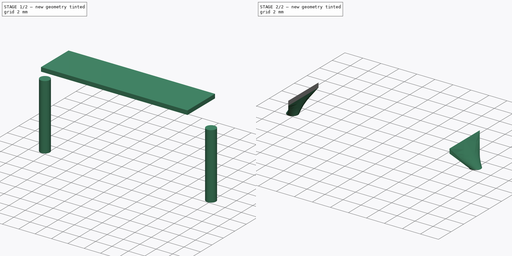
[diagram: build sequence overview — one tinted view per stage of 2, left to right]
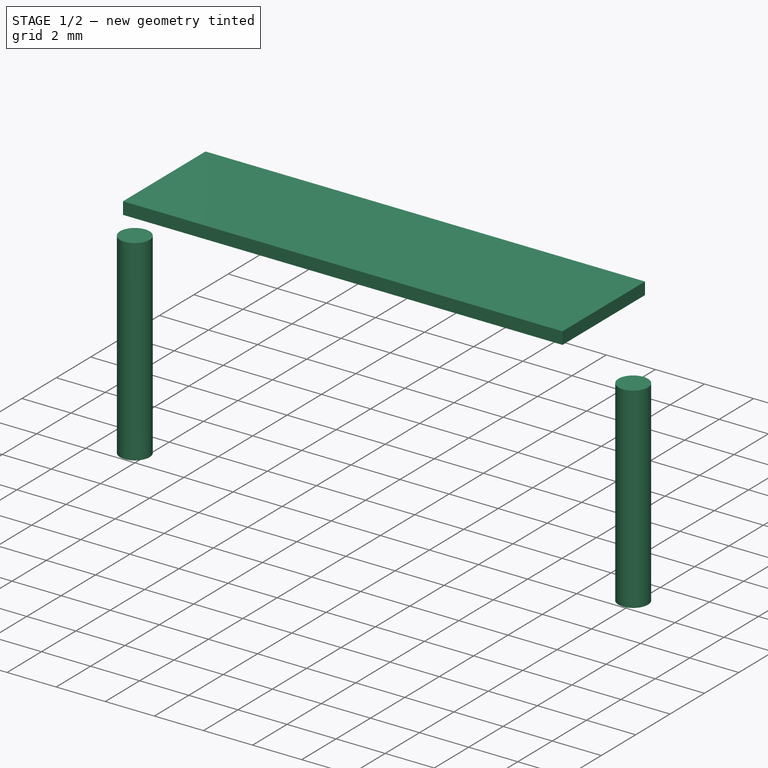
[diagram: stage 1 of 2 — iso view after this stage's code; geometry added in this stage tinted green]
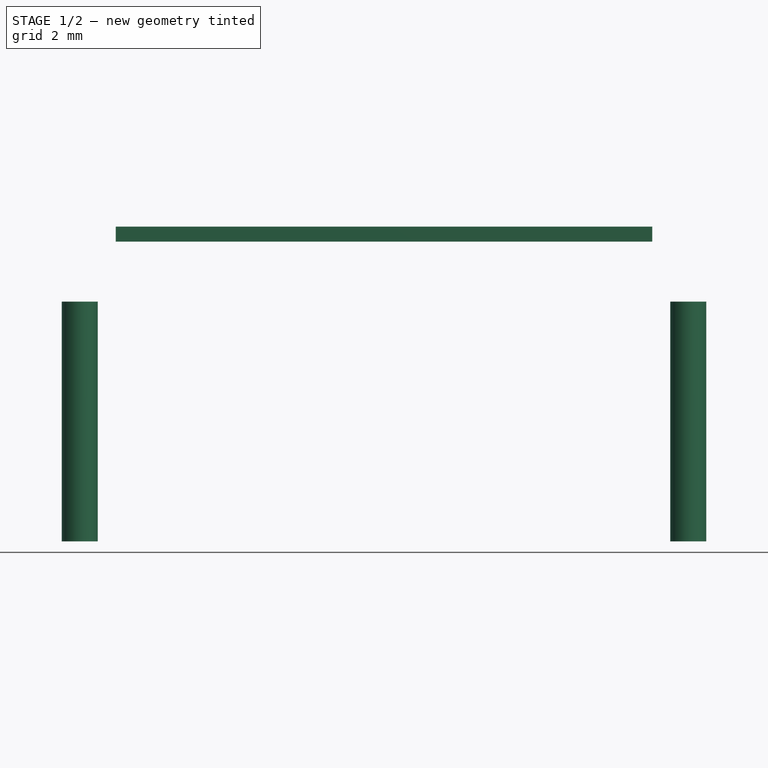
[diagram: stage 1 of 2 — front view after this stage's code; geometry added in this stage tinted green]
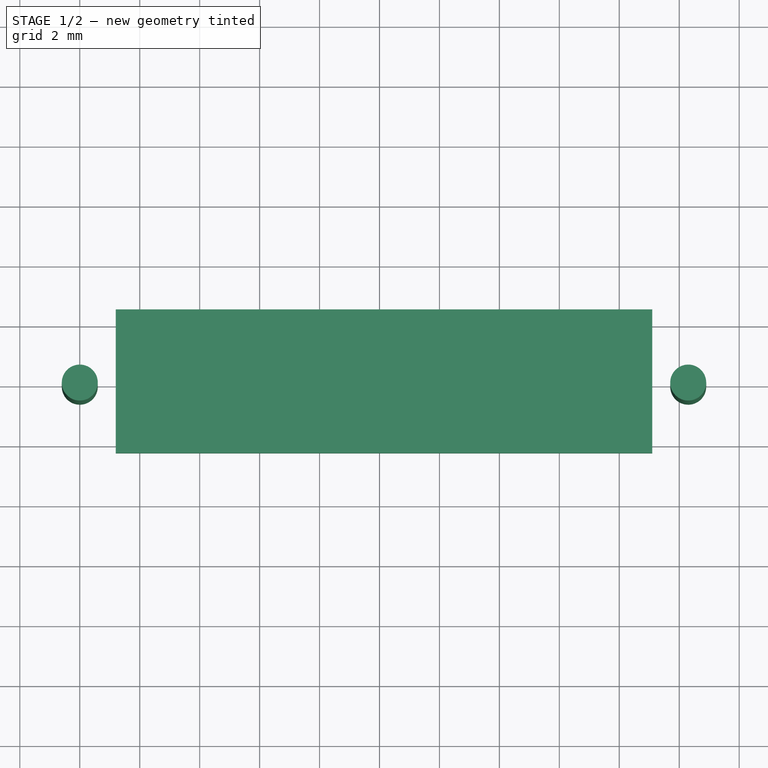
[diagram: stage 1 of 2 — top view after this stage's code; geometry added in this stage tinted green]
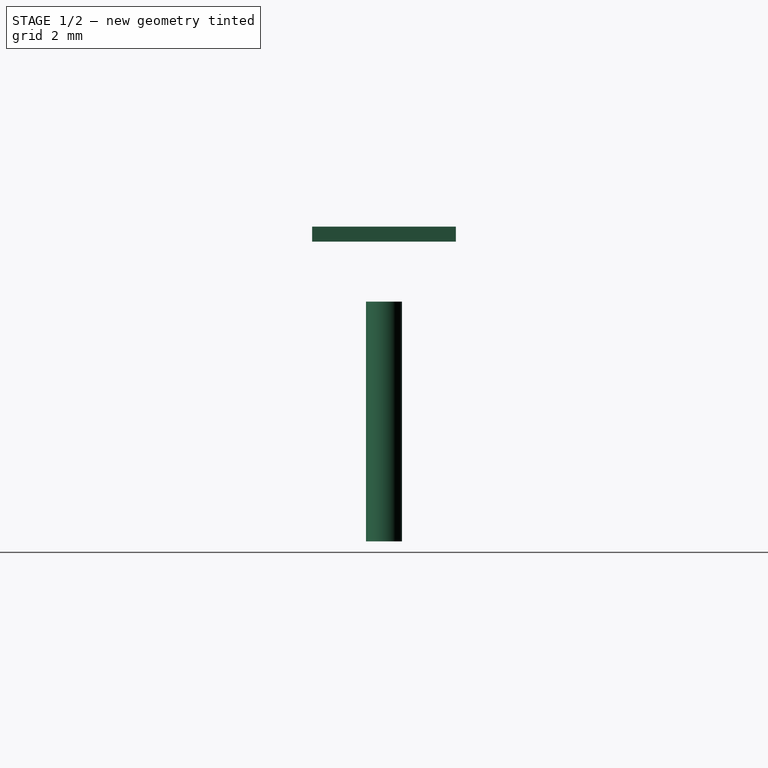
[diagram: stage 1 of 2 — right view after this stage's code; geometry added in this stage tinted green]
FCSTD DOCUMENT  (FreeCAD 0.16R6703 (Git))
Label: Resistor_Bare_Metal_Element_L21.3mm_W4.8mm_P20.30mm
License: All rights reserved
LicenseURL: http://en.wikipedia.org/wiki/All_rights_reserved
objects: Sketcher::SketchObject×6, PartDesign::Pad×2, Part::Loft×2, Spreadsheet::Sheet×1
note: 12 computed .brp shape members not serialized (recipe doc carries the construction recipe); baked Part::Feature solids carry a one-line shape summary decoded from their .brp

FEATURE [Spreadsheet::Sheet] Spreadsheet  label="dimensions"
  cells = A1=L; B1(L)=21.3; A2=d; B2(d)=4.8; C2(dd)=4.8; A3=RM; B3(RM)=20.3; A4=d_wire; B4(d_wire)=1.2
FEATURE [Sketcher::SketchObject] Sketch
  Placement = pos=(0,0,-3) rot=(0,0,1;0rad)
  expr: Constraints[4] = Spreadsheet.d_wire / 2
  expr: Constraints[2] = Spreadsheet.RM
  sketch-geometry (2):
    g0: Circle CenterX=0 CenterY=0 CenterZ=0 NormalX=0 NormalY=0 NormalZ=1 Radius=0.6
    g1: Circle CenterX=20.3 CenterY=0 CenterZ=0 NormalX=0 NormalY=0 NormalZ=1 Radius=0.6
  constraints (5):
    c: Coincident(g0,g-1)
    c: PointOnObject(g1,g-1)
    c: DistanceX(g-1,g1) = 20.3
    c: Equal(g0,g1)
    c: Radius(g0) = 0.6
FEATURE [PartDesign::Pad] Pad
  Length = 8
  Length2 = 100
  Placement = pos=(0,0,-3) rot=(0,0,1;0rad)
  Sketch = -> Sketch
  Type = 0
FEATURE [Sketcher::SketchObject] Sketch001
  Placement = pos=(0,0,7) rot=(0,0,1;0rad)
  expr: Constraints[11] = Spreadsheet.d / 2
  expr: Constraints[2] = Spreadsheet.d
  expr: Constraints[9] = Spreadsheet.d_wire
  expr: Constraints[8] = Spreadsheet.RM - 2 * Spreadsheet.d_wire
  sketch-geometry (4):
    g0: LineSegment StartX=1.2 StartY=2.4 StartZ=0 EndX=19.1 EndY=2.4 EndZ=0
    g1: LineSegment StartX=19.1 StartY=-2.4 StartZ=0 EndX=1.2 EndY=-2.4 EndZ=0
    g2: LineSegment StartX=1.2 StartY=2.4 StartZ=0 EndX=1.2 EndY=-2.4 EndZ=0
    g3: LineSegment StartX=19.1 StartY=-2.4 StartZ=0 EndX=19.1 EndY=2.4 EndZ=0
  constraints (12):
    c: Horizontal(g0)
    c: Horizontal(g1)
    c: DistanceY(g1,g0) = 4.8
    c: Coincident(g2,g0)
    c: Coincident(g2,g1)
    c: Vertical(g2)
    c: Coincident(g3,g0)
    c: Vertical(g3)
    c: DistanceX(g0,g0) = 17.9
    c: DistanceX(g-1,g0) = 1.2
    c: Coincident(g1,g3)
    c: DistanceY(g-1,g0) = 2.4
FEATURE [PartDesign::Pad] Pad001
  Length = 0.5
  Length2 = 100
  Placement = pos=(0,0,7) rot=(0,0,1;0rad)
  Sketch = -> Sketch001
  Type = 0
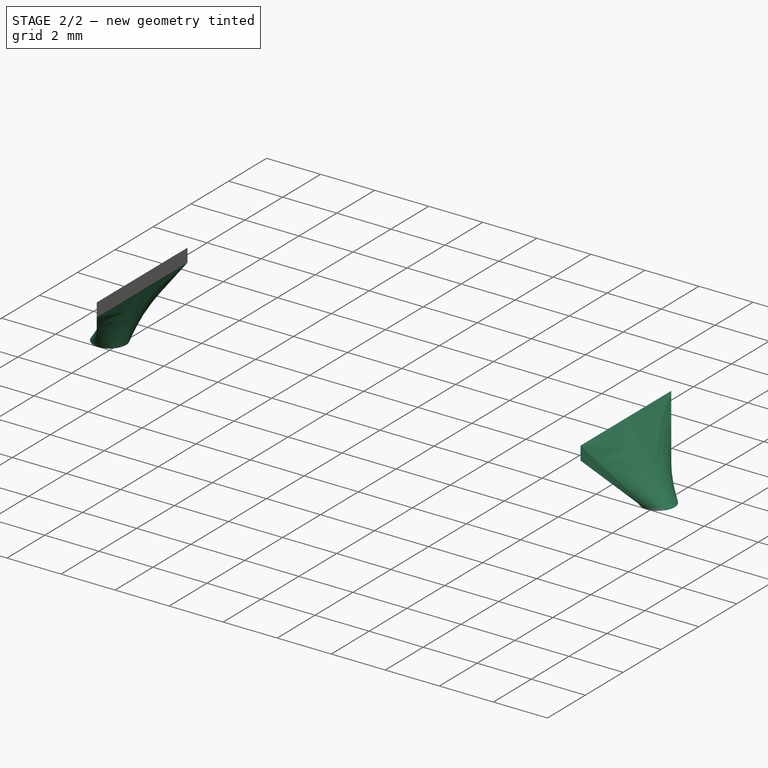
[diagram: stage 2 of 2 — iso view after this stage's code; geometry added in this stage tinted green]
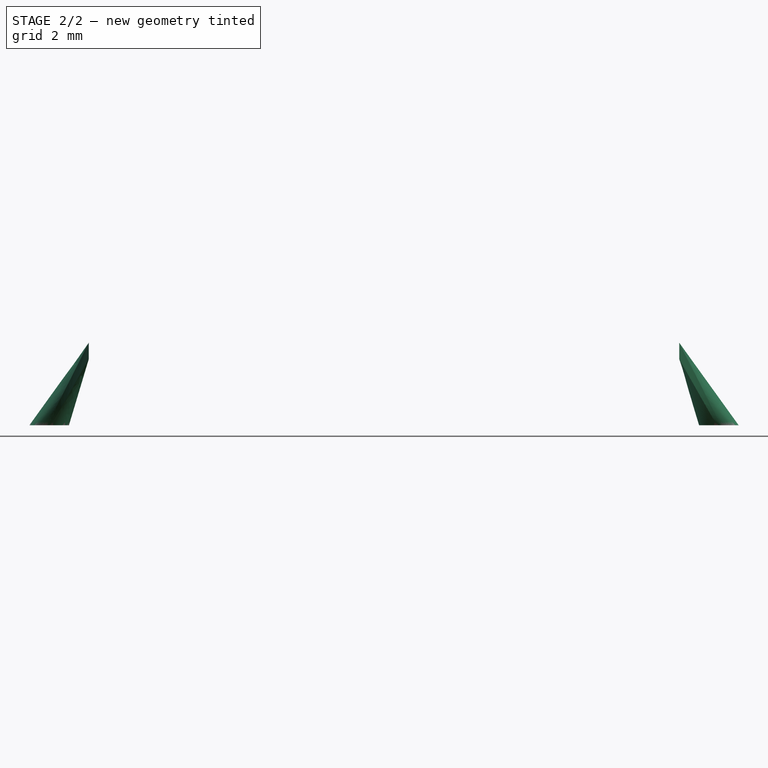
[diagram: stage 2 of 2 — front view after this stage's code; geometry added in this stage tinted green]
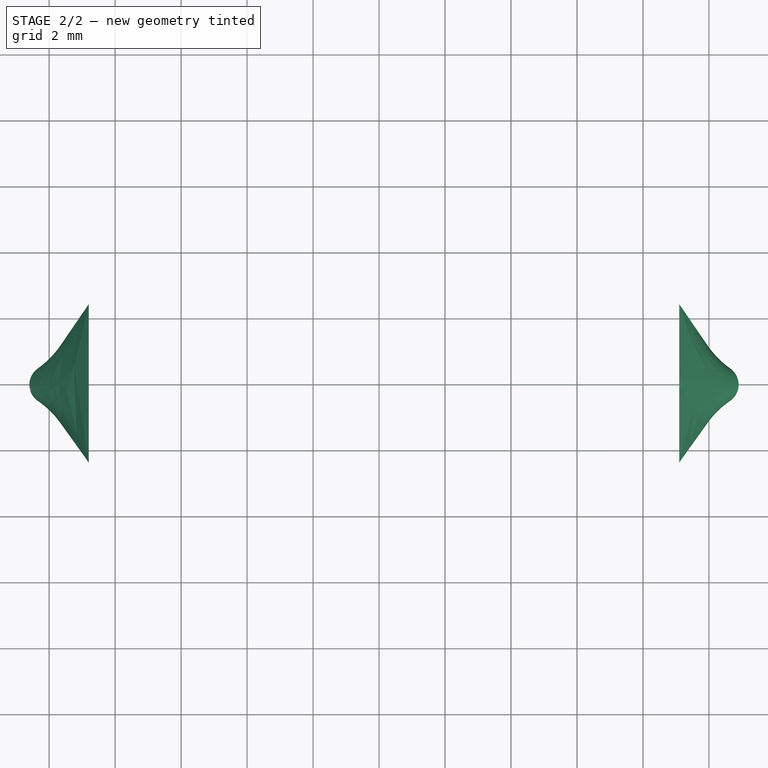
[diagram: stage 2 of 2 — top view after this stage's code; geometry added in this stage tinted green]
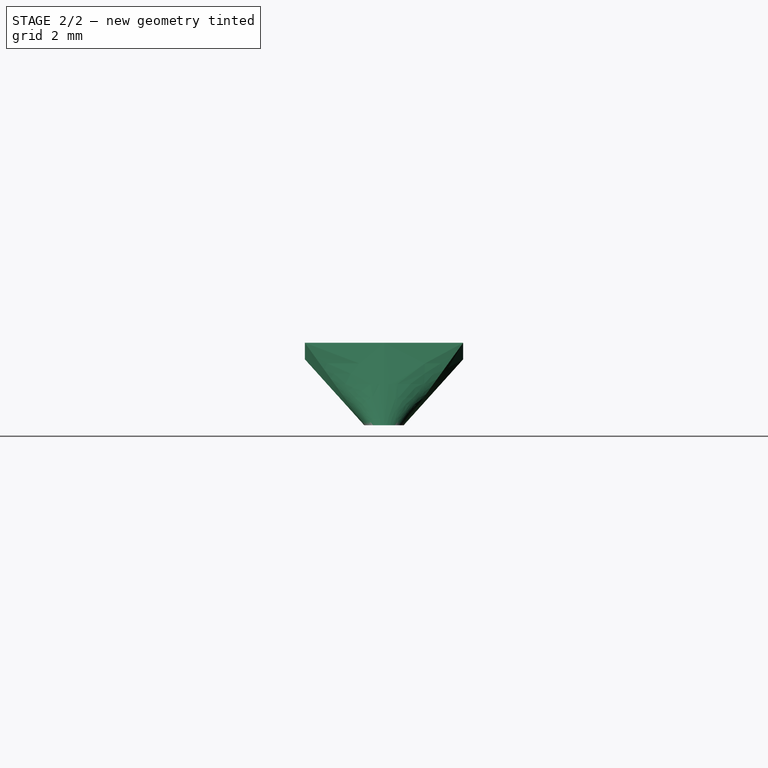
[diagram: stage 2 of 2 — right view after this stage's code; geometry added in this stage tinted green]
FEATURE [Sketcher::SketchObject] Sketch002
  Placement = pos=(19.1,0,7) rot=(0.57735,0.57735,0.57735;2.0944rad)
  Support = -> Pad001 [Face4]
  expr: Constraints[8] = Spreadsheet.d
  sketch-geometry (4):
    g0: LineSegment StartX=-2.4 StartY=0 StartZ=0 EndX=2.4 EndY=0 EndZ=0
    g1: LineSegment StartX=2.4 StartY=0 StartZ=0 EndX=2.4 EndY=0.5 EndZ=0
    g2: LineSegment StartX=2.4 StartY=0.5 StartZ=0 EndX=-2.4 EndY=0.5 EndZ=0
    g3: LineSegment StartX=-2.4 StartY=0.5 StartZ=0 EndX=-2.4 EndY=0 EndZ=0
  constraints (12):
    c: Coincident(g0,g1)
    c: Coincident(g1,g2)
    c: Coincident(g2,g3)
    c: Coincident(g3,g0)
    c: Horizontal(g0)
    c: Horizontal(g2)
    c: Vertical(g1)
    c: Vertical(g3)
    c: DistanceX(g0,g0) = 4.8
    c: DistanceY(g0,g1) = 0.5
    c: DistanceY(g-1,g0) = 0
    c: Symmetric(g0,g0,g-1)
FEATURE [Sketcher::SketchObject] Sketch003
  Placement = pos=(0,0,5) rot=(0,0,1;0rad)
  Support = -> Pad [Face3]
  expr: Constraints[2] = Spreadsheet.RM
  expr: Constraints[1] = Spreadsheet.d_wire / 2
  sketch-geometry (1):
    g0: Circle CenterX=20.3 CenterY=0 CenterZ=0 NormalX=0 NormalY=0 NormalZ=1 Radius=0.6
  constraints (3):
    c: PointOnObject(g0,g-1)
    c: Radius(g0) = 0.6
    c: DistanceX(g-1,g0) = 20.3
FEATURE [Part::Loft] Loft
  Closed = false
  Ruled = false
  Sections = -> [Sketch002,Sketch003]
  Solid = true
FEATURE [Sketcher::SketchObject] Sketch004
  Placement = pos=(0,0,5) rot=(0,0,1;0rad)
  Support = -> Pad [Face6]
  expr: Constraints[1] = Spreadsheet.d_wire / 2
  sketch-geometry (1):
    g0: Circle CenterX=0 CenterY=0 CenterZ=0 NormalX=0 NormalY=0 NormalZ=1 Radius=0.6
  constraints (2):
    c: Coincident(g0,g-1)
    c: Radius(g0) = 0.6
FEATURE [Sketcher::SketchObject] Sketch005
  Placement = pos=(1.2,0,7) rot=(0.57735,-0.57735,-0.57735;2.0944rad)
  Support = -> Pad001 [Face2]
  expr: Constraints[11] = Spreadsheet.d
  expr: Constraints[10] = 0.5
  sketch-geometry (4):
    g0: LineSegment StartX=-2.4 StartY=0 StartZ=0 EndX=2.4 EndY=0 EndZ=0
    g1: LineSegment StartX=2.4 StartY=0 StartZ=0 EndX=2.4 EndY=0.5 EndZ=0
    g2: LineSegment StartX=2.4 StartY=0.5 StartZ=0 EndX=-2.4 EndY=0.5 EndZ=0
    g3: LineSegment StartX=-2.4 StartY=0.5 StartZ=0 EndX=-2.4 EndY=0 EndZ=0
  constraints (12):
    c: Coincident(g0,g1)
    c: Coincident(g1,g2)
    c: Coincident(g2,g3)
    c: Coincident(g3,g0)
    c: Horizontal(g0)
    c: Horizontal(g2)
    c: Vertical(g1)
    c: Vertical(g3)
    c: PointOnObject(g0,g-1)
    c: Symmetric(g0,g0,g-1)
    c: DistanceY(g0,g1) = 0.5
    c: DistanceX(g2,g1) = 4.8
FEATURE [Part::Loft] Loft001
  Closed = false
  Ruled = false
  Sections = -> [Sketch004,Sketch005]
  Solid = true
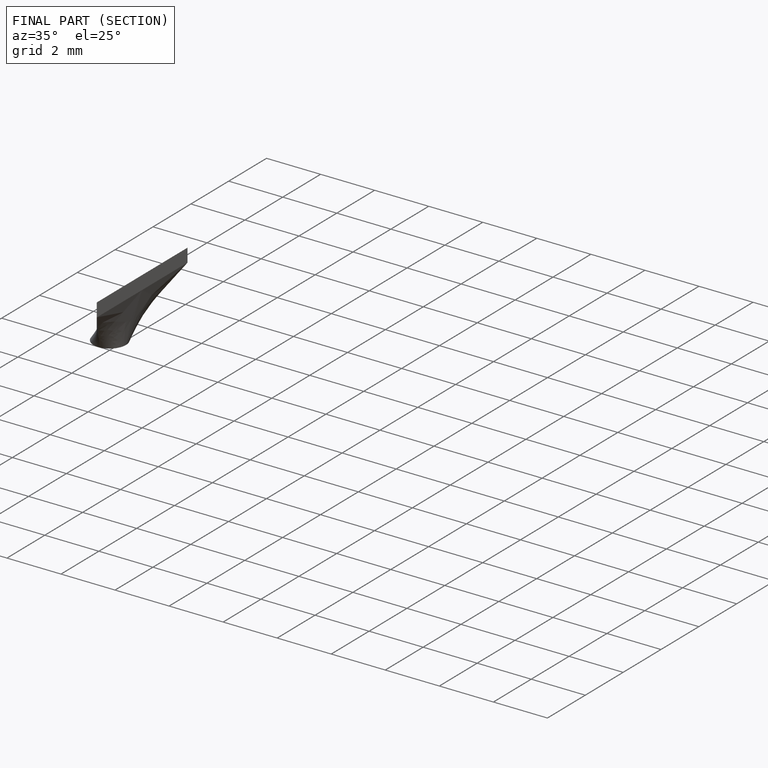
[diagram: finished part — half-section view (interior)]
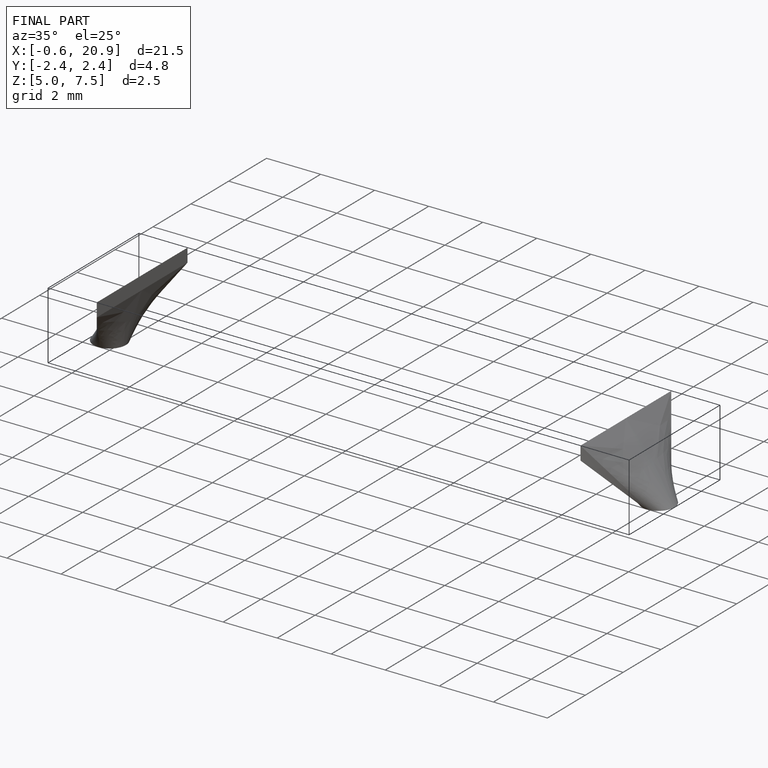
[diagram: finished part — iso view with bounding-box wireframe]
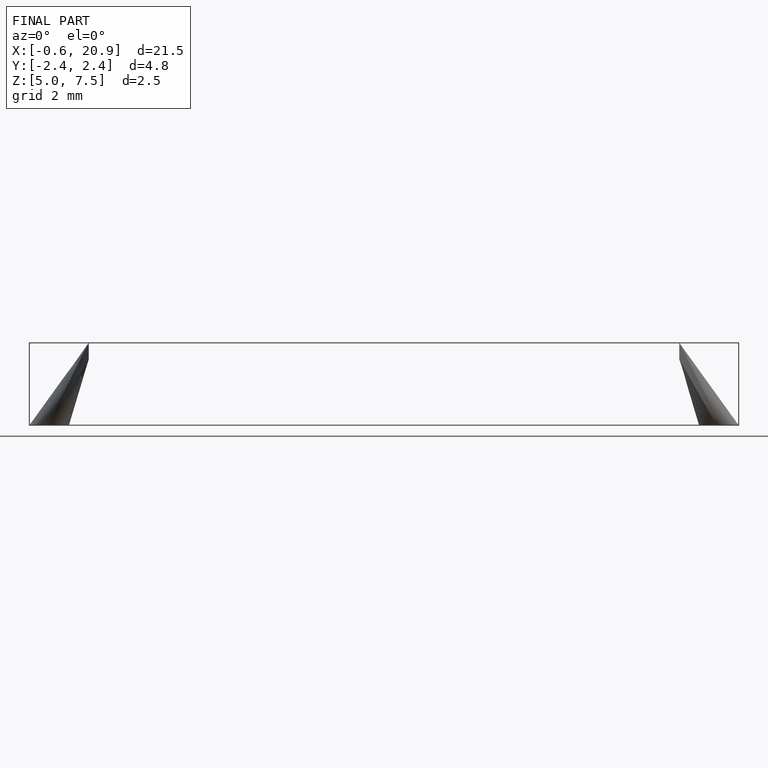
[diagram: finished part — front view with bounding-box wireframe]
